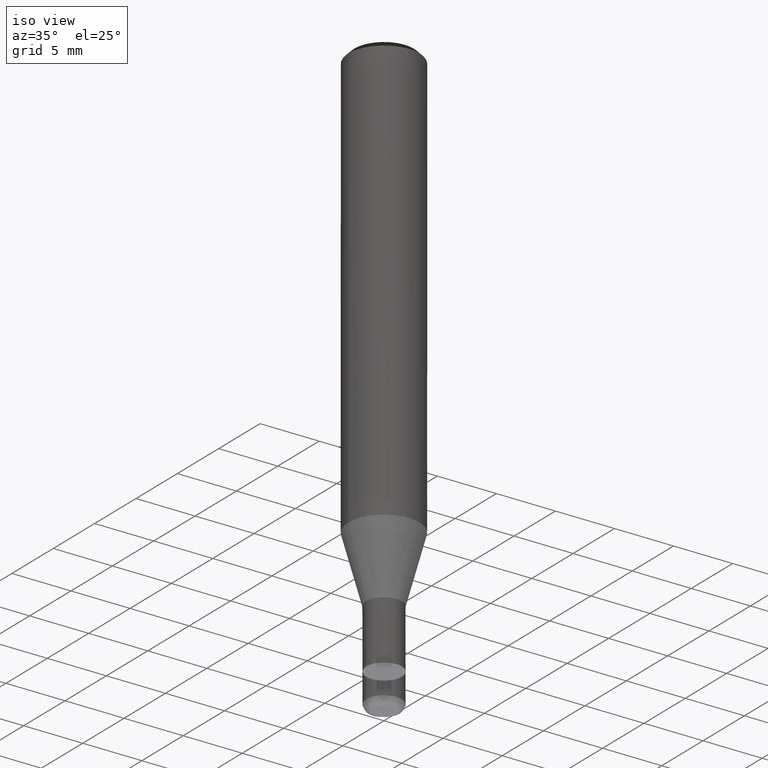
[diagram: clean part render]
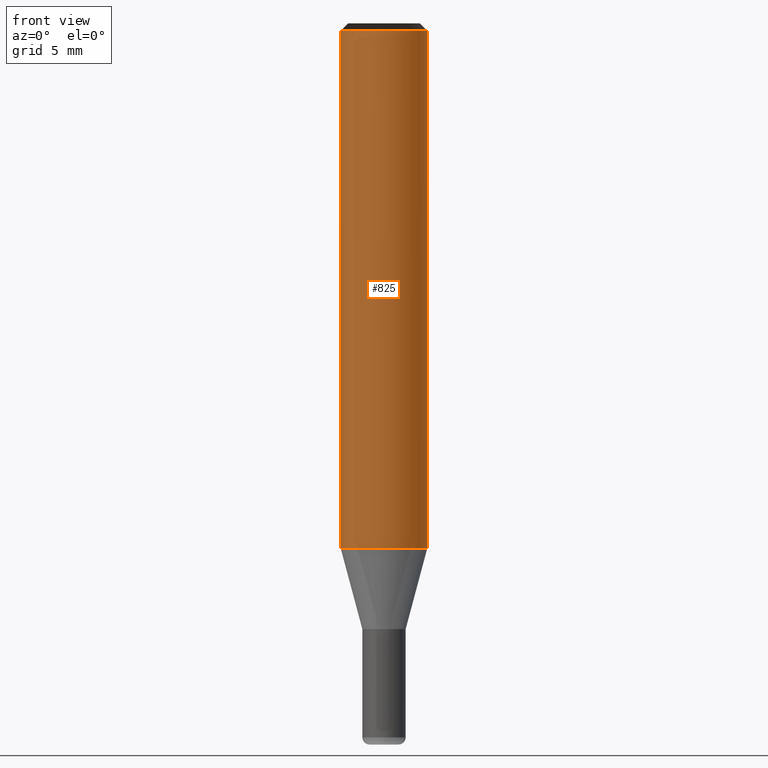
[diagram: tour spotlight — one face highlighted and labeled with its STEP entity id]
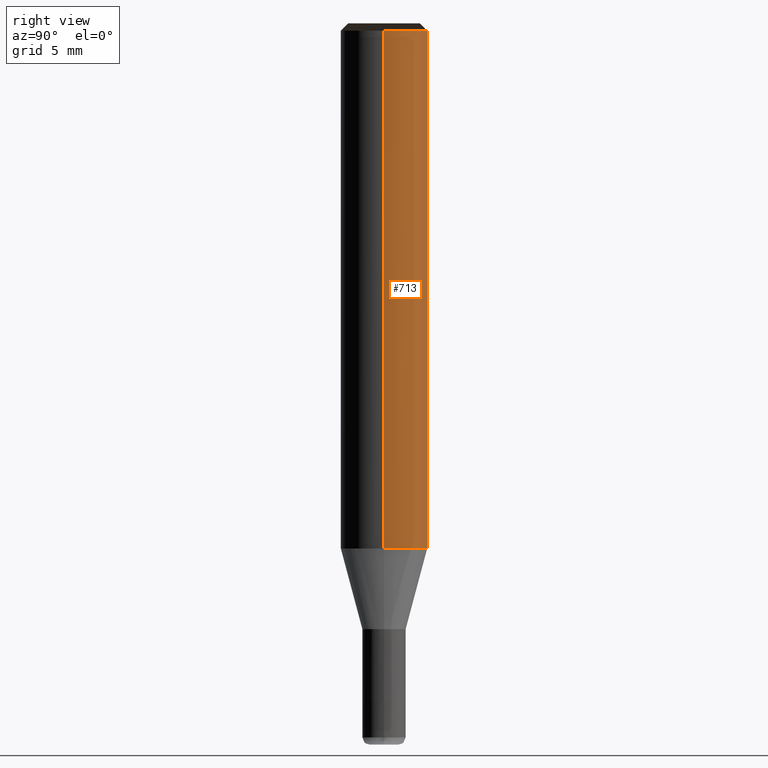
[diagram: tour spotlight — one face highlighted and labeled with its STEP entity id]
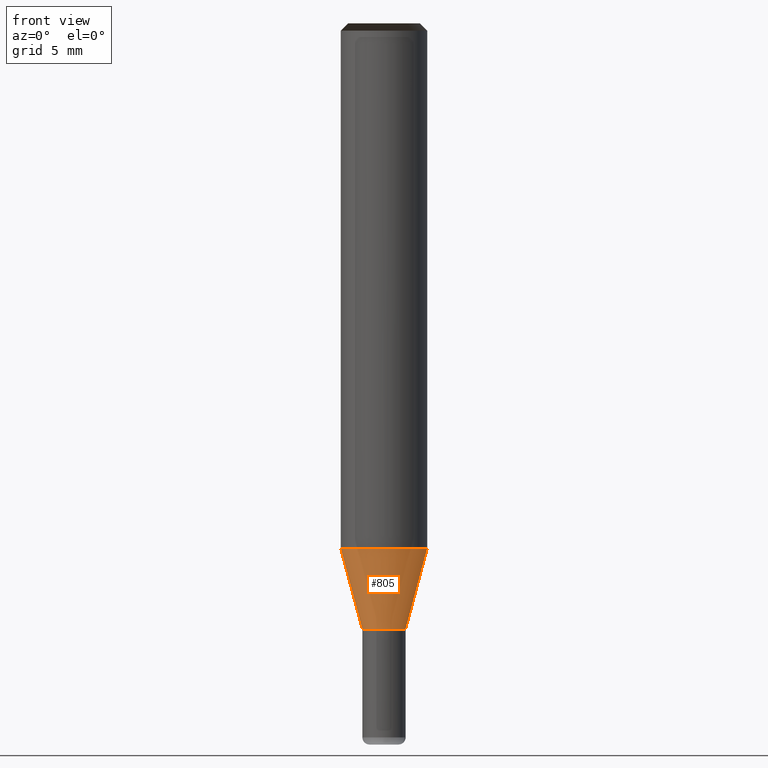
[diagram: tour spotlight — one face highlighted and labeled with its STEP entity id]
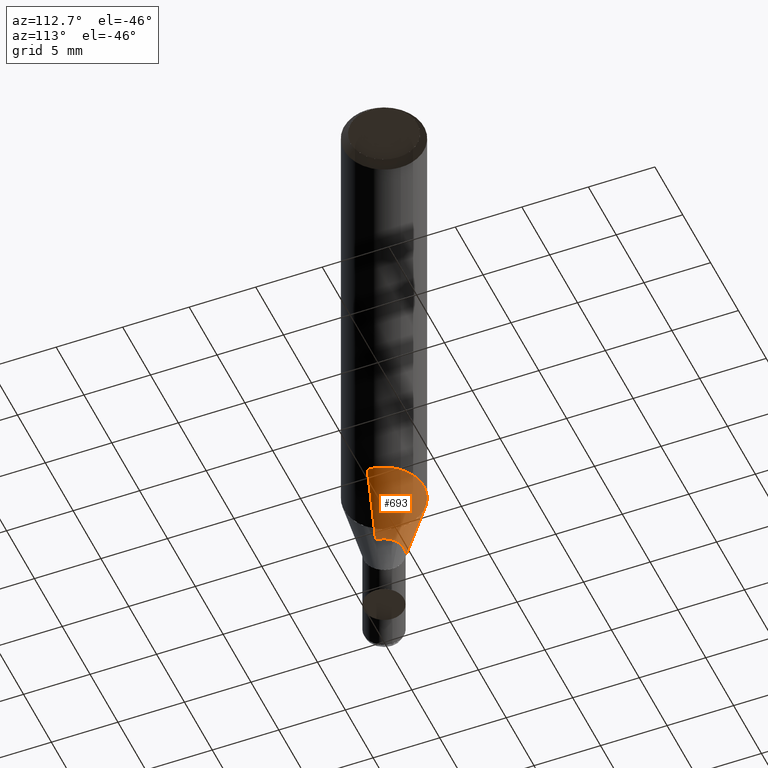
[diagram: tour spotlight — one face highlighted and labeled with its STEP entity id]
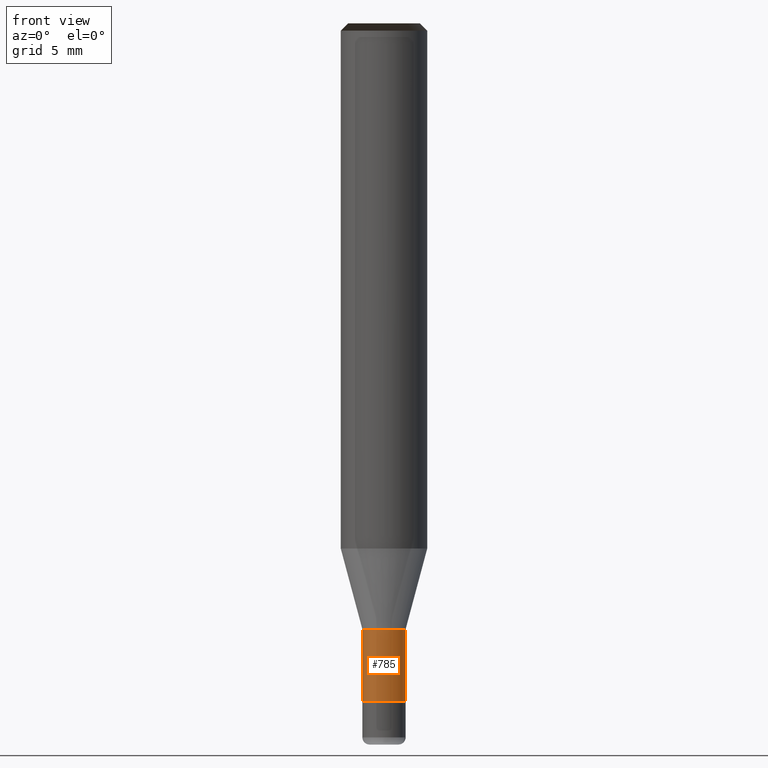
[diagram: tour spotlight — one face highlighted and labeled with its STEP entity id]
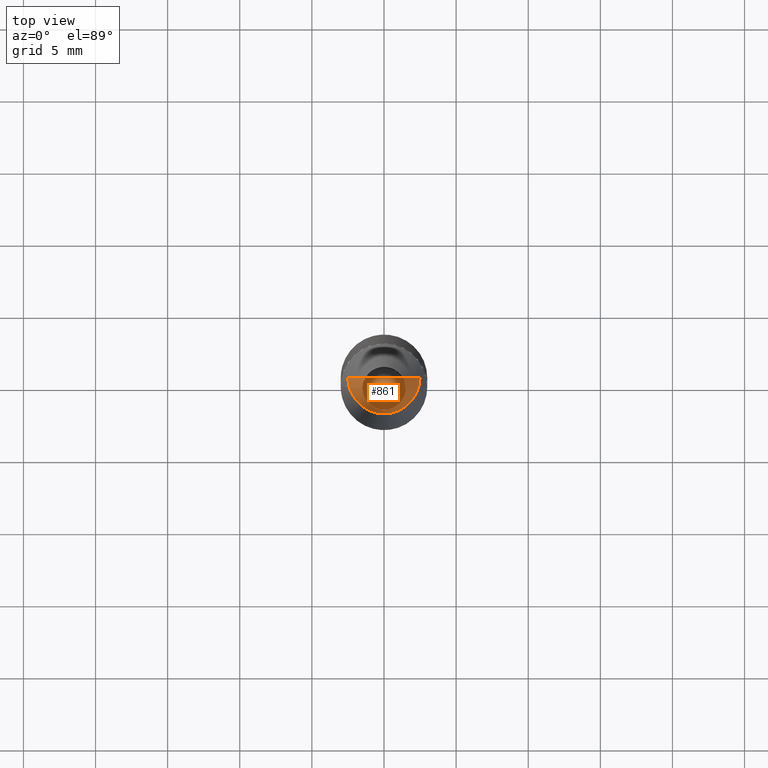
[diagram: tour spotlight — one face highlighted and labeled with its STEP entity id]
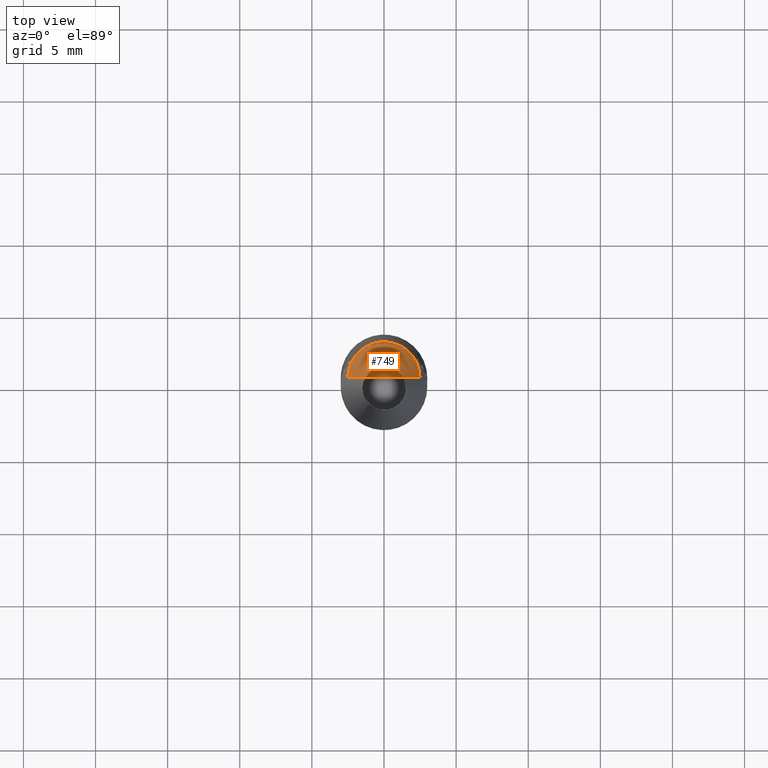
[diagram: tour spotlight — one face highlighted and labeled with its STEP entity id]
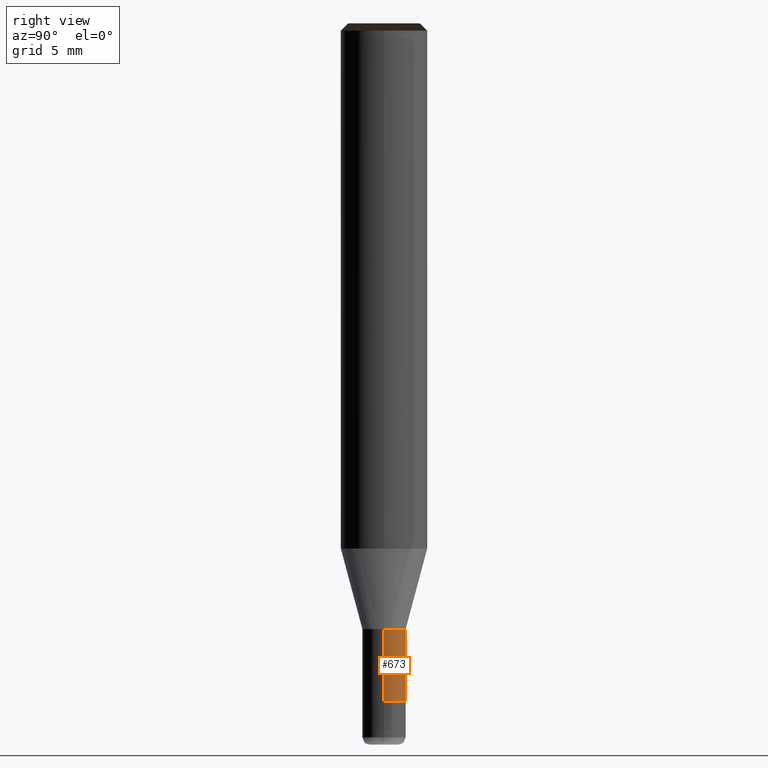
[diagram: tour spotlight — one face highlighted and labeled with its STEP entity id]
A machine part: a face-by-face anatomy tour. The part has 20 B-rep faces; the first image is the clean iso view, then the 8 largest visible faces are spotlighted one at a time (largest first), each with its STEP entity span.

Face 1 — front view, entity #825. In plain terms, the highlighted face is a freeform B-spline surface patch.
Definition (entity closure, byte-faithful):
#455=CARTESIAN_POINT('',(3.0,0.0,-0.0));
#459=CARTESIAN_POINT('',(-3.0,0.0,-0.0));
#460=CARTESIAN_POINT('',(3.0,0.0,35.901923788647));
#464=CARTESIAN_POINT('',(-3.0,0.0,35.901923788647));
#474=CARTESIAN_POINT('',(-3.0,-3.0,-0.0));
#475=CARTESIAN_POINT('',(0.0,-3.0,-0.0));
#476=CARTESIAN_POINT('',(3.0,-3.0,-0.0));
#477=CARTESIAN_POINT('',(-3.0,-3.0,35.901923788647));
#478=CARTESIAN_POINT('',(0.0,-3.0,35.901923788647));
#479=CARTESIAN_POINT('',(3.0,-3.0,35.901923788647));
#806=(
BOUNDED_SURFACE()
B_SPLINE_SURFACE(1,2,(
(#459,#474,#475,#476,#455),
(#464,#477,#478,#479,#460)
), .UNSPECIFIED.,.F.,.F.,.F.)
B_SPLINE_SURFACE_WITH_KNOTS((2,2),(3,2,3),(
0.0,1.0),(
0.0,0.5,1.0), .UNSPECIFIED.)
GEOMETRIC_REPRESENTATION_ITEM()
RATIONAL_B_SPLINE_SURFACE(((1.0,0.707106781187,1.0,0.707106781187,1.0),
(1.0,0.707106781187,1.0,0.707106781187,1.0)
))
REPRESENTATION_ITEM('')
SURFACE()
);
#807=(
BOUNDED_CURVE()
B_SPLINE_CURVE(1,(#464,#459),.UNSPECIFIED.,.F.,.F.)
B_SPLINE_CURVE_WITH_KNOTS((2,2),
(0.0,1.0),.UNSPECIFIED.)
CURVE()
GEOMETRIC_REPRESENTATION_ITEM()
RATIONAL_B_SPLINE_CURVE((1.0,1.0))
REPRESENTATION_ITEM('')
);
#808=(
BOUNDED_CURVE()
B_SPLINE_CURVE(2,(#459,#474,#475,#476,#455),.UNSPECIFIED.,.F.,.F.)
B_SPLINE_CURVE_WITH_KNOTS((3,2,3),
(0.0,0.5,1.0),.UNSPECIFIED.)
CURVE()
GEOMETRIC_REPRESENTATION_ITEM()
RATIONAL_B_SPLINE_CURVE((1.0,0.707106781187,1.0,0.707106781187,1.0))
REPRESENTATION_ITEM('')
);
#809=(
BOUNDED_CURVE()
B_SPLINE_CURVE(1,(#455,#460),.UNSPECIFIED.,.F.,.F.)
B_SPLINE_CURVE_WITH_KNOTS((2,2),
(0.0,1.0),.UNSPECIFIED.)
CURVE()
GEOMETRIC_REPRESENTATION_ITEM()
RATIONAL_B_SPLINE_CURVE((1.0,1.0))
REPRESENTATION_ITEM('')
);
#810=(
BOUNDED_CURVE()
B_SPLINE_CURVE(2,(#460,#479,#478,#477,#464),.UNSPECIFIED.,.F.,.F.)
B_SPLINE_CURVE_WITH_KNOTS((3,2,3),
(0.0,0.5,1.0),.UNSPECIFIED.)
CURVE()
GEOMETRIC_REPRESENTATION_ITEM()
RATIONAL_B_SPLINE_CURVE((1.0,0.707106781187,1.0,0.707106781187,1.0))
REPRESENTATION_ITEM('')
);
#811=VERTEX_POINT('',#455);
#812=VERTEX_POINT('',#459);
#813=VERTEX_POINT('',#460);
#814=VERTEX_POINT('',#464);
#815=EDGE_CURVE('',#814,#812,#807,.T.);
#816=EDGE_CURVE('',#812,#811,#808,.T.);
#817=EDGE_CURVE('',#811,#813,#809,.T.);
#818=EDGE_CURVE('',#813,#814,#810,.T.);
#819=ORIENTED_EDGE('',*,*,#815,.T.);
#820=ORIENTED_EDGE('',*,*,#816,.T.);
#821=ORIENTED_EDGE('',*,*,#817,.T.);
#822=ORIENTED_EDGE('',*,*,#818,.T.);
#823=EDGE_LOOP('',(#819,#820,#821,#822));
#824=FACE_OUTER_BOUND('',#823,.T.);
#825=ADVANCED_FACE('',(#824),#806,.T.);

Face 2 — right view, entity #713. In plain terms, the highlighted face is a freeform B-spline surface patch.
Definition (entity closure, byte-faithful):
#455=CARTESIAN_POINT('',(3.0,0.0,-0.0));
#456=CARTESIAN_POINT('',(3.0,3.0,-0.0));
#457=CARTESIAN_POINT('',(0.0,3.0,-0.0));
#458=CARTESIAN_POINT('',(-3.0,3.0,-0.0));
#459=CARTESIAN_POINT('',(-3.0,0.0,-0.0));
#460=CARTESIAN_POINT('',(3.0,0.0,35.901923788647));
#461=CARTESIAN_POINT('',(3.0,3.0,35.901923788647));
#462=CARTESIAN_POINT('',(0.0,3.0,35.901923788647));
#463=CARTESIAN_POINT('',(-3.0,3.0,35.901923788647));
#464=CARTESIAN_POINT('',(-3.0,0.0,35.901923788647));
#694=(
BOUNDED_SURFACE()
B_SPLINE_SURFACE(1,2,(
(#455,#456,#457,#458,#459),
(#460,#461,#462,#463,#464)
), .UNSPECIFIED.,.F.,.F.,.F.)
B_SPLINE_SURFACE_WITH_KNOTS((2,2),(3,2,3),(
0.0,1.0),(
0.0,0.5,1.0), .UNSPECIFIED.)
GEOMETRIC_REPRESENTATION_ITEM()
RATIONAL_B_SPLINE_SURFACE(((1.0,0.707106781187,1.0,0.707106781187,1.0),
(1.0,0.707106781187,1.0,0.707106781187,1.0)
))
REPRESENTATION_ITEM('')
SURFACE()
);
#695=(
BOUNDED_CURVE()
B_SPLINE_CURVE(2,(#460,#461,#462,#463,#464),.UNSPECIFIED.,.F.,.F.)
B_SPLINE_CURVE_WITH_KNOTS((3,2,3),
(0.0,0.5,1.0),.UNSPECIFIED.)
CURVE()
GEOMETRIC_REPRESENTATION_ITEM()
RATIONAL_B_SPLINE_CURVE((1.0,0.707106781187,1.0,0.707106781187,1.0))
REPRESENTATION_ITEM('')
);
#696=(
BOUNDED_CURVE()
B_SPLINE_CURVE(1,(#464,#459),.UNSPECIFIED.,.F.,.F.)
B_SPLINE_CURVE_WITH_KNOTS((2,2),
(0.0,1.0),.UNSPECIFIED.)
CURVE()
GEOMETRIC_REPRESENTATION_ITEM()
RATIONAL_B_SPLINE_CURVE((1.0,1.0))
REPRESENTATION_ITEM('')
);
#697=(
BOUNDED_CURVE()
B_SPLINE_CURVE(2,(#459,#458,#457,#456,#455),.UNSPECIFIED.,.F.,.F.)
B_SPLINE_CURVE_WITH_KNOTS((3,2,3),
(0.0,0.5,1.0),.UNSPECIFIED.)
CURVE()
GEOMETRIC_REPRESENTATION_ITEM()
RATIONAL_B_SPLINE_CURVE((1.0,0.707106781187,1.0,0.707106781187,1.0))
REPRESENTATION_ITEM('')
);
#698=(
BOUNDED_CURVE()
B_SPLINE_CURVE(1,(#455,#460),.UNSPECIFIED.,.F.,.F.)
B_SPLINE_CURVE_WITH_KNOTS((2,2),
(0.0,1.0),.UNSPECIFIED.)
CURVE()
GEOMETRIC_REPRESENTATION_ITEM()
RATIONAL_B_SPLINE_CURVE((1.0,1.0))
REPRESENTATION_ITEM('')
);
#699=VERTEX_POINT('',#455);
#700=VERTEX_POINT('',#459);
#701=VERTEX_POINT('',#460);
#702=VERTEX_POINT('',#464);
#703=EDGE_CURVE('',#701,#702,#695,.T.);
#704=EDGE_CURVE('',#702,#700,#696,.T.);
#705=EDGE_CURVE('',#700,#699,#697,.T.);
#706=EDGE_CURVE('',#699,#701,#698,.T.);
#707=ORIENTED_EDGE('',*,*,#703,.T.);
#708=ORIENTED_EDGE('',*,*,#704,.T.);
#709=ORIENTED_EDGE('',*,*,#705,.T.);
#710=ORIENTED_EDGE('',*,*,#706,.T.);
#711=EDGE_LOOP('',(#707,#708,#709,#710));
#712=FACE_OUTER_BOUND('',#711,.T.);
#713=ADVANCED_FACE('',(#712),#694,.T.);

Face 3 — front view, entity #805. In plain terms, the highlighted face is a freeform B-spline surface patch.
Definition (entity closure, byte-faithful):
#450=CARTESIAN_POINT('',(1.5,0.0,-5.598076211353));
#454=CARTESIAN_POINT('',(-1.5,0.0,-5.598076211353));
#455=CARTESIAN_POINT('',(3.0,0.0,-0.0));
#459=CARTESIAN_POINT('',(-3.0,0.0,-0.0));
#471=CARTESIAN_POINT('',(-1.5,-1.5,-5.598076211353));
#472=CARTESIAN_POINT('',(0.0,-1.5,-5.598076211353));
#473=CARTESIAN_POINT('',(1.5,-1.5,-5.598076211353));
#474=CARTESIAN_POINT('',(-3.0,-3.0,-0.0));
#475=CARTESIAN_POINT('',(0.0,-3.0,-0.0));
#476=CARTESIAN_POINT('',(3.0,-3.0,-0.0));
#786=(
BOUNDED_SURFACE()
B_SPLINE_SURFACE(1,2,(
(#454,#471,#472,#473,#450),
(#459,#474,#475,#476,#455)
), .UNSPECIFIED.,.F.,.F.,.F.)
B_SPLINE_SURFACE_WITH_KNOTS((2,2),(3,2,3),(
0.0,1.0),(
0.0,0.5,1.0), .UNSPECIFIED.)
GEOMETRIC_REPRESENTATION_ITEM()
RATIONAL_B_SPLINE_SURFACE(((1.0,0.707106781187,1.0,0.707106781187,1.0),
(1.0,0.707106781187,1.0,0.707106781187,1.0)
))
REPRESENTATION_ITEM('')
SURFACE()
);
#787=(
BOUNDED_CURVE()
B_SPLINE_CURVE(1,(#459,#454),.UNSPECIFIED.,.F.,.F.)
B_SPLINE_CURVE_WITH_KNOTS((2,2),
(0.0,1.0),.UNSPECIFIED.)
CURVE()
GEOMETRIC_REPRESENTATION_ITEM()
RATIONAL_B_SPLINE_CURVE((1.0,1.0))
REPRESENTATION_ITEM('')
);
#788=(
BOUNDED_CURVE()
B_SPLINE_CURVE(2,(#454,#471,#472,#473,#450),.UNSPECIFIED.,.F.,.F.)
B_SPLINE_CURVE_WITH_KNOTS((3,2,3),
(0.0,0.5,1.0),.UNSPECIFIED.)
CURVE()
GEOMETRIC_REPRESENTATION_ITEM()
RATIONAL_B_SPLINE_CURVE((1.0,0.707106781187,1.0,0.707106781187,1.0))
REPRESENTATION_ITEM('')
);
#789=(
BOUNDED_CURVE()
B_SPLINE_CURVE(1,(#450,#455),.UNSPECIFIED.,.F.,.F.)
B_SPLINE_CURVE_WITH_KNOTS((2,2),
(0.0,1.0),.UNSPECIFIED.)
CURVE()
GEOMETRIC_REPRESENTATION_ITEM()
RATIONAL_B_SPLINE_CURVE((1.0,1.0))
REPRESENTATION_ITEM('')
);
#790=(
BOUNDED_CURVE()
B_SPLINE_CURVE(2,(#455,#476,#475,#474,#459),.UNSPECIFIED.,.F.,.F.)
B_SPLINE_CURVE_WITH_KNOTS((3,2,3),
(0.0,0.5,1.0),.UNSPECIFIED.)
CURVE()
GEOMETRIC_REPRESENTATION_ITEM()
RATIONAL_B_SPLINE_CURVE((1.0,0.707106781187,1.0,0.707106781187,1.0))
REPRESENTATION_ITEM('')
);
#791=VERTEX_POINT('',#450);
#792=VERTEX_POINT('',#454);
#793=VERTEX_POINT('',#455);
#794=VERTEX_POINT('',#459);
#795=EDGE_CURVE('',#794,#792,#787,.T.);
#796=EDGE_CURVE('',#792,#791,#788,.T.);
#797=EDGE_CURVE('',#791,#793,#789,.T.);
#798=EDGE_CURVE('',#793,#794,#790,.T.);
#799=ORIENTED_EDGE('',*,*,#795,.T.);
#800=ORIENTED_EDGE('',*,*,#796,.T.);
#801=ORIENTED_EDGE('',*,*,#797,.T.);
#802=ORIENTED_EDGE('',*,*,#798,.T.);
#803=EDGE_LOOP('',(#799,#800,#801,#802));
#804=FACE_OUTER_BOUND('',#803,.T.);
#805=ADVANCED_FACE('',(#804),#786,.T.);

Face 4 — auxiliary view, entity #693. In plain terms, the highlighted face is a freeform B-spline surface patch.
Definition (entity closure, byte-faithful):
#450=CARTESIAN_POINT('',(1.5,0.0,-5.598076211353));
#451=CARTESIAN_POINT('',(1.5,1.5,-5.598076211353));
#452=CARTESIAN_POINT('',(0.0,1.5,-5.598076211353));
#453=CARTESIAN_POINT('',(-1.5,1.5,-5.598076211353));
#454=CARTESIAN_POINT('',(-1.5,0.0,-5.598076211353));
#455=CARTESIAN_POINT('',(3.0,0.0,-0.0));
#456=CARTESIAN_POINT('',(3.0,3.0,-0.0));
#457=CARTESIAN_POINT('',(0.0,3.0,-0.0));
#458=CARTESIAN_POINT('',(-3.0,3.0,-0.0));
#459=CARTESIAN_POINT('',(-3.0,0.0,-0.0));
#674=(
BOUNDED_SURFACE()
B_SPLINE_SURFACE(1,2,(
(#450,#451,#452,#453,#454),
(#455,#456,#457,#458,#459)
), .UNSPECIFIED.,.F.,.F.,.F.)
B_SPLINE_SURFACE_WITH_KNOTS((2,2),(3,2,3),(
0.0,1.0),(
0.0,0.5,1.0), .UNSPECIFIED.)
GEOMETRIC_REPRESENTATION_ITEM()
RATIONAL_B_SPLINE_SURFACE(((1.0,0.707106781187,1.0,0.707106781187,1.0),
(1.0,0.707106781187,1.0,0.707106781187,1.0)
))
REPRESENTATION_ITEM('')
SURFACE()
);
#675=(
BOUNDED_CURVE()
B_SPLINE_CURVE(2,(#455,#456,#457,#458,#459),.UNSPECIFIED.,.F.,.F.)
B_SPLINE_CURVE_WITH_KNOTS((3,2,3),
(0.0,0.5,1.0),.UNSPECIFIED.)
CURVE()
GEOMETRIC_REPRESENTATION_ITEM()
RATIONAL_B_SPLINE_CURVE((1.0,0.707106781187,1.0,0.707106781187,1.0))
REPRESENTATION_ITEM('')
);
#676=(
BOUNDED_CURVE()
B_SPLINE_CURVE(1,(#459,#454),.UNSPECIFIED.,.F.,.F.)
B_SPLINE_CURVE_WITH_KNOTS((2,2),
(0.0,1.0),.UNSPECIFIED.)
CURVE()
GEOMETRIC_REPRESENTATION_ITEM()
RATIONAL_B_SPLINE_CURVE((1.0,1.0))
REPRESENTATION_ITEM('')
);
#677=(
BOUNDED_CURVE()
B_SPLINE_CURVE(2,(#454,#453,#452,#451,#450),.UNSPECIFIED.,.F.,.F.)
B_SPLINE_CURVE_WITH_KNOTS((3,2,3),
(0.0,0.5,1.0),.UNSPECIFIED.)
CURVE()
GEOMETRIC_REPRESENTATION_ITEM()
RATIONAL_B_SPLINE_CURVE((1.0,0.707106781187,1.0,0.707106781187,1.0))
REPRESENTATION_ITEM('')
);
#678=(
BOUNDED_CURVE()
B_SPLINE_CURVE(1,(#450,#455),.UNSPECIFIED.,.F.,.F.)
B_SPLINE_CURVE_WITH_KNOTS((2,2),
(0.0,1.0),.UNSPECIFIED.)
CURVE()
GEOMETRIC_REPRESENTATION_ITEM()
RATIONAL_B_SPLINE_CURVE((1.0,1.0))
REPRESENTATION_ITEM('')
);
#679=VERTEX_POINT('',#450);
#680=VERTEX_POINT('',#454);
#681=VERTEX_POINT('',#455);
#682=VERTEX_POINT('',#459);
#683=EDGE_CURVE('',#681,#682,#675,.T.);
#684=EDGE_CURVE('',#682,#680,#676,.T.);
#685=EDGE_CURVE('',#680,#679,#677,.T.);
#686=EDGE_CURVE('',#679,#681,#678,.T.);
#687=ORIENTED_EDGE('',*,*,#683,.T.);
#688=ORIENTED_EDGE('',*,*,#684,.T.);
#689=ORIENTED_EDGE('',*,*,#685,.T.);
#690=ORIENTED_EDGE('',*,*,#686,.T.);
#691=EDGE_LOOP('',(#687,#688,#689,#690));
#692=FACE_OUTER_BOUND('',#691,.T.);
#693=ADVANCED_FACE('',(#692),#674,.T.);

Face 5 — front view, entity #785. In plain terms, the highlighted face is a freeform B-spline surface patch.
Definition (entity closure, byte-faithful):
#432=CARTESIAN_POINT('',(1.5,0.0,-10.598076211353));
#436=CARTESIAN_POINT('',(-1.5,0.0,-10.598076211353));
#447=CARTESIAN_POINT('',(-1.5,-1.5,-10.598076211353));
#448=CARTESIAN_POINT('',(0.0,-1.5,-10.598076211353));
#449=CARTESIAN_POINT('',(1.5,-1.5,-10.598076211353));
#450=CARTESIAN_POINT('',(1.5,0.0,-5.598076211353));
#454=CARTESIAN_POINT('',(-1.5,0.0,-5.598076211353));
#471=CARTESIAN_POINT('',(-1.5,-1.5,-5.598076211353));
#472=CARTESIAN_POINT('',(0.0,-1.5,-5.598076211353));
#473=CARTESIAN_POINT('',(1.5,-1.5,-5.598076211353));
#766=(
BOUNDED_SURFACE()
B_SPLINE_SURFACE(1,2,(
(#436,#447,#448,#449,#432),
(#454,#471,#472,#473,#450)
), .UNSPECIFIED.,.F.,.F.,.F.)
B_SPLINE_SURFACE_WITH_KNOTS((2,2),(3,2,3),(
0.0,1.0),(
0.0,0.5,1.0), .UNSPECIFIED.)
GEOMETRIC_REPRESENTATION_ITEM()
RATIONAL_B_SPLINE_SURFACE(((1.0,0.707106781187,1.0,0.707106781187,1.0),
(1.0,0.707106781187,1.0,0.707106781187,1.0)
))
REPRESENTATION_ITEM('')
SURFACE()
);
#767=(
BOUNDED_CURVE()
B_SPLINE_CURVE(1,(#454,#436),.UNSPECIFIED.,.F.,.F.)
B_SPLINE_CURVE_WITH_KNOTS((2,2),
(0.0,1.0),.UNSPECIFIED.)
CURVE()
GEOMETRIC_REPRESENTATION_ITEM()
RATIONAL_B_SPLINE_CURVE((1.0,1.0))
REPRESENTATION_ITEM('')
);
#768=(
BOUNDED_CURVE()
B_SPLINE_CURVE(2,(#436,#447,#448,#449,#432),.UNSPECIFIED.,.F.,.F.)
B_SPLINE_CURVE_WITH_KNOTS((3,2,3),
(0.0,0.5,1.0),.UNSPECIFIED.)
CURVE()
GEOMETRIC_REPRESENTATION_ITEM()
RATIONAL_B_SPLINE_CURVE((1.0,0.707106781187,1.0,0.707106781187,1.0))
REPRESENTATION_ITEM('')
);
#769=(
BOUNDED_CURVE()
B_SPLINE_CURVE(1,(#432,#450),.UNSPECIFIED.,.F.,.F.)
B_SPLINE_CURVE_WITH_KNOTS((2,2),
(0.0,1.0),.UNSPECIFIED.)
CURVE()
GEOMETRIC_REPRESENTATION_ITEM()
RATIONAL_B_SPLINE_CURVE((1.0,1.0))
REPRESENTATION_ITEM('')
);
#770=(
BOUNDED_CURVE()
B_SPLINE_CURVE(2,(#450,#473,#472,#471,#454),.UNSPECIFIED.,.F.,.F.)
B_SPLINE_CURVE_WITH_KNOTS((3,2,3),
(0.0,0.5,1.0),.UNSPECIFIED.)
CURVE()
GEOMETRIC_REPRESENTATION_ITEM()
RATIONAL_B_SPLINE_CURVE((1.0,0.707106781187,1.0,0.707106781187,1.0))
REPRESENTATION_ITEM('')
);
#771=VERTEX_POINT('',#432);
#772=VERTEX_POINT('',#436);
#773=VERTEX_POINT('',#450);
#774=VERTEX_POINT('',#454);
#775=EDGE_CURVE('',#774,#772,#767,.T.);
#776=EDGE_CURVE('',#772,#771,#768,.T.);
#777=EDGE_CURVE('',#771,#773,#769,.T.);
#778=EDGE_CURVE('',#773,#774,#770,.T.);
#779=ORIENTED_EDGE('',*,*,#775,.T.);
#780=ORIENTED_EDGE('',*,*,#776,.T.);
#781=ORIENTED_EDGE('',*,*,#777,.T.);
#782=ORIENTED_EDGE('',*,*,#778,.T.);
#783=EDGE_LOOP('',(#779,#780,#781,#782));
#784=FACE_OUTER_BOUND('',#783,.T.);
#785=ADVANCED_FACE('',(#784),#766,.T.);

Face 6 — top view, entity #861. In plain terms, the highlighted face is a freeform B-spline surface patch.
Definition (entity closure, byte-faithful):
#465=CARTESIAN_POINT('',(2.5,0.0,36.401923788647));
#469=CARTESIAN_POINT('',(-2.5,0.0,36.401923788647));
#470=CARTESIAN_POINT('',(0.0,0.0,36.401923788647));
#480=CARTESIAN_POINT('',(-2.5,-2.5,36.401923788647));
#481=CARTESIAN_POINT('',(0.0,-2.5,36.401923788647));
#482=CARTESIAN_POINT('',(2.5,-2.5,36.401923788647));
#846=(
BOUNDED_SURFACE()
B_SPLINE_SURFACE(1,2,(
(#469,#480,#481,#482,#465),
(#470,#470,#470,#470,#470)
), .UNSPECIFIED.,.F.,.F.,.F.)
B_SPLINE_SURFACE_WITH_KNOTS((2,2),(3,2,3),(
0.0,1.0),(
0.0,0.5,1.0), .UNSPECIFIED.)
GEOMETRIC_REPRESENTATION_ITEM()
RATIONAL_B_SPLINE_SURFACE(((1.0,0.707106781187,1.0,0.707106781187,1.0),
(1.0,0.707106781187,1.0,0.707106781187,1.0)
))
REPRESENTATION_ITEM('')
SURFACE()
);
#847=(
BOUNDED_CURVE()
B_SPLINE_CURVE(1,(#470,#465),.UNSPECIFIED.,.F.,.F.)
B_SPLINE_CURVE_WITH_KNOTS((2,2),
(0.0,1.0),.UNSPECIFIED.)
CURVE()
GEOMETRIC_REPRESENTATION_ITEM()
RATIONAL_B_SPLINE_CURVE((1.0,1.0))
REPRESENTATION_ITEM('')
);
#848=(
BOUNDED_CURVE()
B_SPLINE_CURVE(2,(#465,#482,#481,#480,#469),.UNSPECIFIED.,.F.,.F.)
B_SPLINE_CURVE_WITH_KNOTS((3,2,3),
(0.0,0.5,1.0),.UNSPECIFIED.)
CURVE()
GEOMETRIC_REPRESENTATION_ITEM()
RATIONAL_B_SPLINE_CURVE((1.0,0.707106781187,1.0,0.707106781187,1.0))
REPRESENTATION_ITEM('')
);
#849=(
BOUNDED_CURVE()
B_SPLINE_CURVE(1,(#469,#470),.UNSPECIFIED.,.F.,.F.)
B_SPLINE_CURVE_WITH_KNOTS((2,2),
(0.0,1.0),.UNSPECIFIED.)
CURVE()
GEOMETRIC_REPRESENTATION_ITEM()
RATIONAL_B_SPLINE_CURVE((1.0,1.0))
REPRESENTATION_ITEM('')
);
#850=VERTEX_POINT('',#465);
#851=VERTEX_POINT('',#469);
#852=VERTEX_POINT('',#470);
#853=EDGE_CURVE('',#852,#850,#847,.T.);
#854=EDGE_CURVE('',#850,#851,#848,.T.);
#855=EDGE_CURVE('',#851,#852,#849,.T.);
#856=ORIENTED_EDGE('',*,*,#853,.T.);
#857=ORIENTED_EDGE('',*,*,#854,.T.);
#858=ORIENTED_EDGE('',*,*,#855,.T.);
#859=EDGE_LOOP('',(#856,#857,#858));
#860=FACE_OUTER_BOUND('',#859,.T.);
#861=ADVANCED_FACE('',(#860),#846,.T.);

Face 7 — top view, entity #749. In plain terms, the highlighted face is a freeform B-spline surface patch.
Definition (entity closure, byte-faithful):
#465=CARTESIAN_POINT('',(2.5,0.0,36.401923788647));
#466=CARTESIAN_POINT('',(2.5,2.5,36.401923788647));
#467=CARTESIAN_POINT('',(0.0,2.5,36.401923788647));
#468=CARTESIAN_POINT('',(-2.5,2.5,36.401923788647));
#469=CARTESIAN_POINT('',(-2.5,0.0,36.401923788647));
#470=CARTESIAN_POINT('',(0.0,0.0,36.401923788647));
#734=(
BOUNDED_SURFACE()
B_SPLINE_SURFACE(1,2,(
(#465,#466,#467,#468,#469),
(#470,#470,#470,#470,#470)
), .UNSPECIFIED.,.F.,.F.,.F.)
B_SPLINE_SURFACE_WITH_KNOTS((2,2),(3,2,3),(
0.0,1.0),(
0.0,0.5,1.0), .UNSPECIFIED.)
GEOMETRIC_REPRESENTATION_ITEM()
RATIONAL_B_SPLINE_SURFACE(((1.0,0.707106781187,1.0,0.707106781187,1.0),
(1.0,0.707106781187,1.0,0.707106781187,1.0)
))
REPRESENTATION_ITEM('')
SURFACE()
);
#735=(
BOUNDED_CURVE()
B_SPLINE_CURVE(1,(#470,#465),.UNSPECIFIED.,.F.,.F.)
B_SPLINE_CURVE_WITH_KNOTS((2,2),
(0.0,1.0),.UNSPECIFIED.)
CURVE()
GEOMETRIC_REPRESENTATION_ITEM()
RATIONAL_B_SPLINE_CURVE((1.0,1.0))
REPRESENTATION_ITEM('')
);
#736=(
BOUNDED_CURVE()
B_SPLINE_CURVE(2,(#465,#466,#467,#468,#469),.UNSPECIFIED.,.F.,.F.)
B_SPLINE_CURVE_WITH_KNOTS((3,2,3),
(0.0,0.5,1.0),.UNSPECIFIED.)
CURVE()
GEOMETRIC_REPRESENTATION_ITEM()
RATIONAL_B_SPLINE_CURVE((1.0,0.707106781187,1.0,0.707106781187,1.0))
REPRESENTATION_ITEM('')
);
#737=(
BOUNDED_CURVE()
B_SPLINE_CURVE(1,(#469,#470),.UNSPECIFIED.,.F.,.F.)
B_SPLINE_CURVE_WITH_KNOTS((2,2),
(0.0,1.0),.UNSPECIFIED.)
CURVE()
GEOMETRIC_REPRESENTATION_ITEM()
RATIONAL_B_SPLINE_CURVE((1.0,1.0))
REPRESENTATION_ITEM('')
);
#738=VERTEX_POINT('',#465);
#739=VERTEX_POINT('',#469);
#740=VERTEX_POINT('',#470);
#741=EDGE_CURVE('',#740,#738,#735,.T.);
#742=EDGE_CURVE('',#738,#739,#736,.T.);
#743=EDGE_CURVE('',#739,#740,#737,.T.);
#744=ORIENTED_EDGE('',*,*,#741,.T.);
#745=ORIENTED_EDGE('',*,*,#742,.T.);
#746=ORIENTED_EDGE('',*,*,#743,.T.);
#747=EDGE_LOOP('',(#744,#745,#746));
#748=FACE_OUTER_BOUND('',#747,.T.);
#749=ADVANCED_FACE('',(#748),#734,.T.);

Face 8 — right view, entity #673. In plain terms, the highlighted face is a freeform B-spline surface patch.
Definition (entity closure, byte-faithful):
#432=CARTESIAN_POINT('',(1.5,0.0,-10.598076211353));
#433=CARTESIAN_POINT('',(1.5,1.5,-10.598076211353));
#434=CARTESIAN_POINT('',(0.0,1.5,-10.598076211353));
#435=CARTESIAN_POINT('',(-1.5,1.5,-10.598076211353));
#436=CARTESIAN_POINT('',(-1.5,0.0,-10.598076211353));
#450=CARTESIAN_POINT('',(1.5,0.0,-5.598076211353));
#451=CARTESIAN_POINT('',(1.5,1.5,-5.598076211353));
#452=CARTESIAN_POINT('',(0.0,1.5,-5.598076211353));
#453=CARTESIAN_POINT('',(-1.5,1.5,-5.598076211353));
#454=CARTESIAN_POINT('',(-1.5,0.0,-5.598076211353));
#654=(
BOUNDED_SURFACE()
B_SPLINE_SURFACE(1,2,(
(#432,#433,#434,#435,#436),
(#450,#451,#452,#453,#454)
), .UNSPECIFIED.,.F.,.F.,.F.)
B_SPLINE_SURFACE_WITH_KNOTS((2,2),(3,2,3),(
0.0,1.0),(
0.0,0.5,1.0), .UNSPECIFIED.)
GEOMETRIC_REPRESENTATION_ITEM()
RATIONAL_B_SPLINE_SURFACE(((1.0,0.707106781187,1.0,0.707106781187,1.0),
(1.0,0.707106781187,1.0,0.707106781187,1.0)
))
REPRESENTATION_ITEM('')
SURFACE()
);
#655=(
BOUNDED_CURVE()
B_SPLINE_CURVE(2,(#450,#451,#452,#453,#454),.UNSPECIFIED.,.F.,.F.)
B_SPLINE_CURVE_WITH_KNOTS((3,2,3),
(0.0,0.5,1.0),.UNSPECIFIED.)
CURVE()
GEOMETRIC_REPRESENTATION_ITEM()
RATIONAL_B_SPLINE_CURVE((1.0,0.707106781187,1.0,0.707106781187,1.0))
REPRESENTATION_ITEM('')
);
#656=(
BOUNDED_CURVE()
B_SPLINE_CURVE(1,(#454,#436),.UNSPECIFIED.,.F.,.F.)
B_SPLINE_CURVE_WITH_KNOTS((2,2),
(0.0,1.0),.UNSPECIFIED.)
CURVE()
GEOMETRIC_REPRESENTATION_ITEM()
RATIONAL_B_SPLINE_CURVE((1.0,1.0))
REPRESENTATION_ITEM('')
);
#657=(
BOUNDED_CURVE()
B_SPLINE_CURVE(2,(#436,#435,#434,#433,#432),.UNSPECIFIED.,.F.,.F.)
B_SPLINE_CURVE_WITH_KNOTS((3,2,3),
(0.0,0.5,1.0),.UNSPECIFIED.)
CURVE()
GEOMETRIC_REPRESENTATION_ITEM()
RATIONAL_B_SPLINE_CURVE((1.0,0.707106781187,1.0,0.707106781187,1.0))
REPRESENTATION_ITEM('')
);
#658=(
BOUNDED_CURVE()
B_SPLINE_CURVE(1,(#432,#450),.UNSPECIFIED.,.F.,.F.)
B_SPLINE_CURVE_WITH_KNOTS((2,2),
(0.0,1.0),.UNSPECIFIED.)
CURVE()
GEOMETRIC_REPRESENTATION_ITEM()
RATIONAL_B_SPLINE_CURVE((1.0,1.0))
REPRESENTATION_ITEM('')
);
#659=VERTEX_POINT('',#432);
#660=VERTEX_POINT('',#436);
#661=VERTEX_POINT('',#450);
#662=VERTEX_POINT('',#454);
#663=EDGE_CURVE('',#661,#662,#655,.T.);
#664=EDGE_CURVE('',#662,#660,#656,.T.);
#665=EDGE_CURVE('',#660,#659,#657,.T.);
#666=EDGE_CURVE('',#659,#661,#658,.T.);
#667=ORIENTED_EDGE('',*,*,#663,.T.);
#668=ORIENTED_EDGE('',*,*,#664,.T.);
#669=ORIENTED_EDGE('',*,*,#665,.T.);
#670=ORIENTED_EDGE('',*,*,#666,.T.);
#671=EDGE_LOOP('',(#667,#668,#669,#670));
#672=FACE_OUTER_BOUND('',#671,.T.);
#673=ADVANCED_FACE('',(#672),#654,.T.);